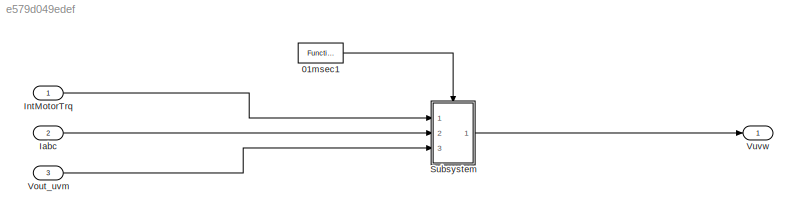
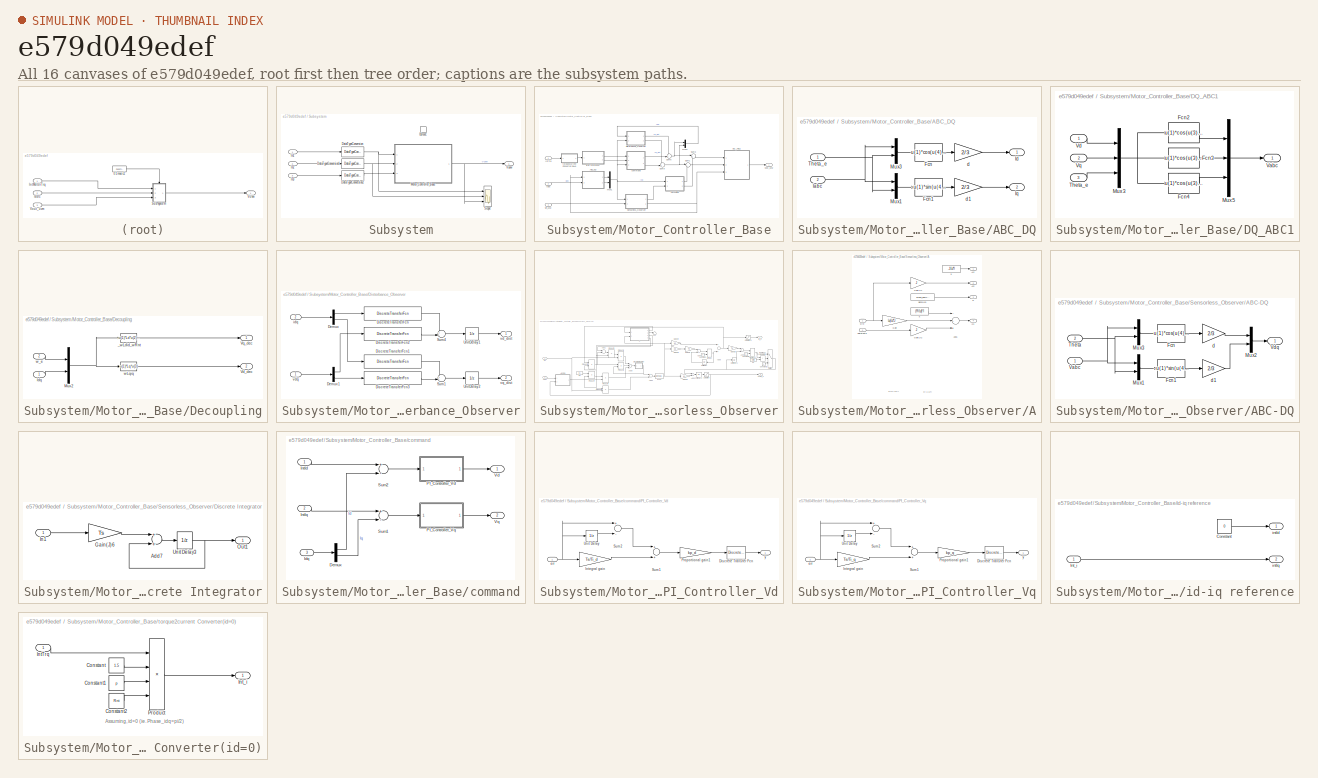
[diagram: thumbnail index - all 16 canvases of the model, root first then tree order]
MODEL slx_e579d049edef
KIND model
CONFIG AbsTol = auto
CONFIG FixedStep = 1e-5
CONFIG MaxStep = auto
CONFIG MinStep = auto
CONFIG PreLoadFcn = param_PMSM_Base\nload('param_PMSM_Base.m');
CONFIG RelTol = 1e-3
CONFIG SampleTimeConstraint = Unconstrained
CONFIG Solver = FixedStepDiscrete
CONFIG SolverMode = SingleTasking
CONFIG SolverName = FixedStepDiscrete
CONFIG StartTime = 0.0
CONFIG StopTime = 1
BLOCK [Reference] 01msec1  REF=simulink/Ports &
Subsystems/Function-Call
Generator
  Ports = [0, 1]
  SourceBlock = simulink/Ports &\nSubsystems/Function-Call\nGenerator
  SourceType = Function-Call Generator
  numberOfIterations = 1
  sample_time = 1e-4
BLOCK [Inport] Iabc
  IconDisplay = Port number
  Port = 2
  PortDimensions = 3
BLOCK [Inport] IntMotorTrq
  IconDisplay = Port number
BLOCK [SubSystem] Subsystem
  Ports = [3, 1, 0, 1]
  RequestExecContextInheritance = off
BLOCK [TriggerPort] Subsystem/01msec
  Ports = []
  StatesWhenEnabling = held
  TriggerType = function-call
BLOCK [DataTypeConversion] Subsystem/DataTypeConversion
  RndMeth = Floor
  SaturateOnIntegerOverflow = off
BLOCK [DataTypeConversion] Subsystem/DataTypeConversion1
  RndMeth = Floor
  SaturateOnIntegerOverflow = off
BLOCK [DataTypeConversion] Subsystem/DataTypeConversion2
  RndMeth = Floor
  SaturateOnIntegerOverflow = off
BLOCK [Inport] Subsystem/In1
  IconDisplay = Port number
BLOCK [Inport] Subsystem/In2
  IconDisplay = Port number
  Port = 2
BLOCK [Inport] Subsystem/In3
  IconDisplay = Port number
  Port = 3
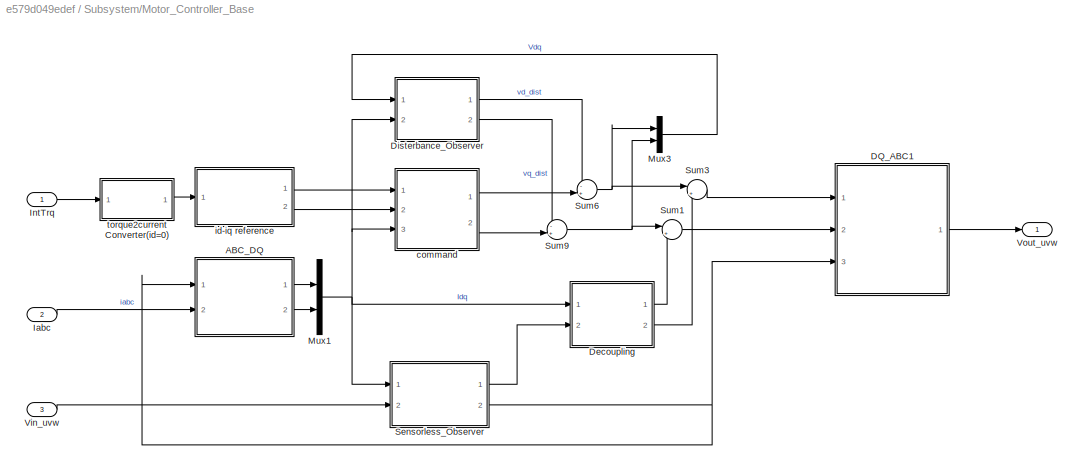
BLOCK [SubSystem] Subsystem/Motor_Controller_Base
  Ports = [3, 1]
  RequestExecContextInheritance = off
  TreatAsAtomicUnit = on
BLOCK [SubSystem] Subsystem/Motor_Controller_Base/ABC_DQ
  Ports = [2, 2]
  RequestExecContextInheritance = off
BLOCK [Fcn] Subsystem/Motor_Controller_Base/ABC_DQ/Fcn
  Expr = u(1)*cos(u(4))+u(2)*cos(u(4)-2*pi/3)+u(3)*cos(u(4)+2*pi/3)
BLOCK [Fcn] Subsystem/Motor_Controller_Base/ABC_DQ/Fcn1
  Expr = -u(1)*sin(u(4))-u(2)*sin(u(4)-2*pi/3)-u(3)*sin(u(4)+2*pi/3)
BLOCK [Inport] Subsystem/Motor_Controller_Base/ABC_DQ/Iabc
  IconDisplay = Port number
  Port = 2
BLOCK [Outport] Subsystem/Motor_Controller_Base/ABC_DQ/Id
  IconDisplay = Port number
  InitialOutput = 0
BLOCK [Outport] Subsystem/Motor_Controller_Base/ABC_DQ/Iq
  IconDisplay = Port number
  InitialOutput = 0
  Port = 2
BLOCK [Mux] Subsystem/Motor_Controller_Base/ABC_DQ/Mux1
  DisplayOption = bar
  Inputs = 2
  Ports = [2, 1]
BLOCK [Mux] Subsystem/Motor_Controller_Base/ABC_DQ/Mux3
  DisplayOption = bar
  Inputs = 2
  Ports = [2, 1]
BLOCK [Inport] Subsystem/Motor_Controller_Base/ABC_DQ/Theta_e
  IconDisplay = Port number
BLOCK [Gain] Subsystem/Motor_Controller_Base/ABC_DQ/d
  Gain = 2/3
  SaturateOnIntegerOverflow = off
BLOCK [Gain] Subsystem/Motor_Controller_Base/ABC_DQ/d1
  Gain = 2/3
  SaturateOnIntegerOverflow = off
BLOCK [SubSystem] Subsystem/Motor_Controller_Base/DQ_ABC1
  Ports = [3, 1]
  RequestExecContextInheritance = off
BLOCK [Fcn] Subsystem/Motor_Controller_Base/DQ_ABC1/Fcn2
  Expr = u(1)*cos(u(3))-u(2)*sin(u(3))
BLOCK [Fcn] Subsystem/Motor_Controller_Base/DQ_ABC1/Fcn3
  Expr = u(1)*cos(u(3)-2*pi/3)-u(2)*sin(u(3)-2*pi/3)
BLOCK [Fcn] Subsystem/Motor_Controller_Base/DQ_ABC1/Fcn4
  Expr = u(1)*cos(u(3)+2*pi/3)-u(2)*sin(u(3)+2*pi/3)
BLOCK [Mux] Subsystem/Motor_Controller_Base/DQ_ABC1/Mux3
  DisplayOption = bar
  Inputs = 3
  Ports = [3, 1]
BLOCK [Mux] Subsystem/Motor_Controller_Base/DQ_ABC1/Mux5
  DisplayOption = bar
  Inputs = 3
  Ports = [3, 1]
BLOCK [Inport] Subsystem/Motor_Controller_Base/DQ_ABC1/Theta_e
  IconDisplay = Port number
  Port = 3
BLOCK [Outport] Subsystem/Motor_Controller_Base/DQ_ABC1/Vabc
  IconDisplay = Port number
  InitialOutput = 0
BLOCK [Inport] Subsystem/Motor_Controller_Base/DQ_ABC1/Vd
  IconDisplay = Port number
BLOCK [Inport] Subsystem/Motor_Controller_Base/DQ_ABC1/Vq
  IconDisplay = Port number
  Port = 2
BLOCK [SubSystem] Subsystem/Motor_Controller_Base/Decoupling
  Ports = [2, 2]
  RequestExecContextInheritance = off
BLOCK [Inport] Subsystem/Motor_Controller_Base/Decoupling/Idq
  IconDisplay = Port number
BLOCK [Mux] Subsystem/Motor_Controller_Base/Decoupling/Mux2
  DisplayOption = bar
  Inputs = 2
  Ports = [2, 1]
BLOCK [Outport] Subsystem/Motor_Controller_Base/Decoupling/Vd_dec
  IconDisplay = Port number
  Port = 2
BLOCK [Outport] Subsystem/Motor_Controller_Base/Decoupling/Vq_dec
  IconDisplay = Port number
BLOCK [Fcn] Subsystem/Motor_Controller_Base/Decoupling/_wLdid_wRnt
  Expr = -u(1)*Ld*u(2)-u(1)*Rnt
BLOCK [Fcn] Subsystem/Motor_Controller_Base/Decoupling/wLqiq
  Expr = u(1)*Lq*u(3)
BLOCK [Inport] Subsystem/Motor_Controller_Base/Decoupling/w_e
  IconDisplay = Port number
  Port = 2
BLOCK [SubSystem] Subsystem/Motor_Controller_Base/Disterbance_Observer
  Ports = [2, 2]
  RequestExecContextInheritance = off
BLOCK [Demux] Subsystem/Motor_Controller_Base/Disterbance_Observer/Demux
  DisplayOption = bar
  Outputs = 2
  Ports = [1, 2]
BLOCK [Demux] Subsystem/Motor_Controller_Base/Disterbance_Observer/Demux1
  DisplayOption = bar
  Outputs = 2
  Ports = [1, 2]
BLOCK [DiscreteTransferFcn] Subsystem/Motor_Controller_Base/Disterbance_Observer/DiscreteTransferFcn
  Denominator = [ 2*Tff+Ts -2*Tff+Ts ]
  InputPortMap = u0
  Numerator = [ 2*Ld+Ts*R  -2*Ld+Ts*R ]
  Ports = [1, 1]
BLOCK [DiscreteTransferFcn] Subsystem/Motor_Controller_Base/Disterbance_Observer/DiscreteTransferFcn1
  Denominator = [ 2*Tff+Ts -2*Tff+Ts ]
  InputPortMap = u0
  Numerator = [ 2*Lq+Ts*R  -2*Lq+Ts*R ]
  Ports = [1, 1]
BLOCK [DiscreteTransferFcn] Subsystem/Motor_Controller_Base/Disterbance_Observer/DiscreteTransferFcn2
  Denominator = [2*Tff+Ts -2*Tff+Ts]
  InputPortMap = u0
  Numerator = [Ts Ts]
  Ports = [1, 1]
BLOCK [DiscreteTransferFcn] Subsystem/Motor_Controller_Base/Disterbance_Observer/DiscreteTransferFcn3
  Denominator = [2*Tff+Ts -2*Tff+Ts]
  InputPortMap = u0
  Numerator = [Ts Ts]
  Ports = [1, 1]
BLOCK [Sum] Subsystem/Motor_Controller_Base/Disterbance_Observer/Sum1
  IconShape = round
  InputSameDT = off
  Inputs = +-|
  OutDataTypeStr = Inherit: Inherit via internal rule
  Ports = [2, 1]
  SaturateOnIntegerOverflow = off
BLOCK [Sum] Subsystem/Motor_Controller_Base/Disterbance_Observer/Sum4
  IconShape = round
  InputSameDT = off
  Inputs = +-|
  OutDataTypeStr = Inherit: Inherit via internal rule
  Ports = [2, 1]
  SaturateOnIntegerOverflow = off
BLOCK [UnitDelay] Subsystem/Motor_Controller_Base/Disterbance_Observer/UnitDelay1
  SampleTime = -1
BLOCK [UnitDelay] Subsystem/Motor_Controller_Base/Disterbance_Observer/UnitDelay2
  SampleTime = -1
BLOCK [Inport] Subsystem/Motor_Controller_Base/Disterbance_Observer/idq
  IconDisplay = Port number
  Port = 2
BLOCK [Outport] Subsystem/Motor_Controller_Base/Disterbance_Observer/vd_dist
  IconDisplay = Port number
BLOCK [Inport] Subsystem/Motor_Controller_Base/Disterbance_Observer/vdq
  IconDisplay = Port number
BLOCK [Outport] Subsystem/Motor_Controller_Base/Disterbance_Observer/vq_dist
  IconDisplay = Port number
  Port = 2
BLOCK [Inport] Subsystem/Motor_Controller_Base/Iabc
  IconDisplay = Port number
  Port = 2
BLOCK [Inport] Subsystem/Motor_Controller_Base/IntTrq
  IconDisplay = Port number
BLOCK [Mux] Subsystem/Motor_Controller_Base/Mux1
  DisplayOption = bar
  Inputs = 2
  Ports = [2, 1]
BLOCK [Mux] Subsystem/Motor_Controller_Base/Mux3
  DisplayOption = bar
  Inputs = 2
  Ports = [2, 1]
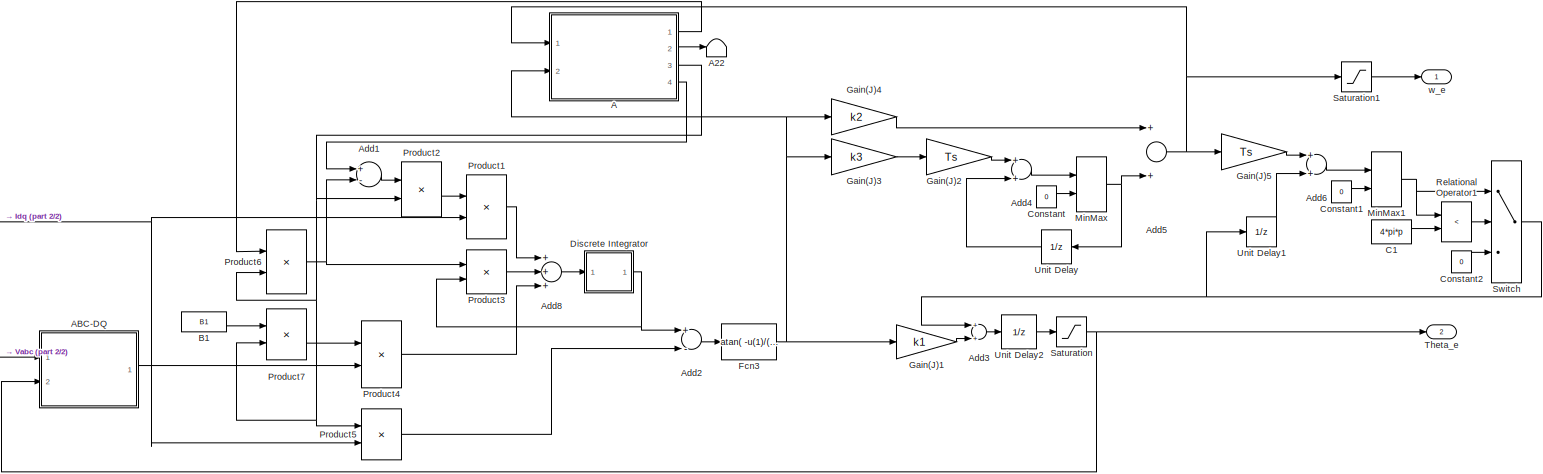
[diagram: Subsystem/Motor_Controller_Base/Sensorless_Observer - part 1/2, most of the canvas]
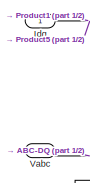
[diagram: Subsystem/Motor_Controller_Base/Sensorless_Observer - part 2/2, middle left region]
BLOCK [SubSystem] Subsystem/Motor_Controller_Base/Sensorless_Observer
  Ports = [2, 2]
  RequestExecContextInheritance = off
BLOCK [SubSystem] Subsystem/Motor_Controller_Base/Sensorless_Observer/A
  Ports = [2, 4]
  RequestExecContextInheritance = off
BLOCK [Outport] Subsystem/Motor_Controller_Base/Sensorless_Observer/A/A11
  IconDisplay = Port number
  Port = 4
BLOCK [Outport] Subsystem/Motor_Controller_Base/Sensorless_Observer/A/A12
  IconDisplay = Port number
BLOCK [Outport] Subsystem/Motor_Controller_Base/Sensorless_Observer/A/A22
  IconDisplay = Port number
  Port = 2
BLOCK [Sum] Subsystem/Motor_Controller_Base/Sensorless_Observer/A/Add1
  InputSameDT = off
  Inputs = --+
  OutDataTypeStr = Inherit: Inherit via internal rule
  Ports = [3, 1]
  SaturateOnIntegerOverflow = off
BLOCK [Outport] Subsystem/Motor_Controller_Base/Sensorless_Observer/A/G
  IconDisplay = Port number
  Port = 3
BLOCK [Gain] Subsystem/Motor_Controller_Base/Sensorless_Observer/A/Gain
  Gain = Lq/Ld*J
  OutDataTypeStr = Inherit: Inherit via internal rule
  ParamDataTypeStr = Inherit: Inherit via internal rule
  SaturateOnIntegerOverflow = off
BLOCK [Gain] Subsystem/Motor_Controller_Base/Sensorless_Observer/A/Gain(J)1
  Gain = J
  SaturateOnIntegerOverflow = off
BLOCK [Gain] Subsystem/Motor_Controller_Base/Sensorless_Observer/A/Gain(J)2
  Gain = J
  SaturateOnIntegerOverflow = off
BLOCK [Constant] Subsystem/Motor_Controller_Base/Sensorless_Observer/A/a
  Value = (R/Ld)*I
BLOCK [Constant] Subsystem/Motor_Controller_Base/Sensorless_Observer/A/alpha*Ld1
  Value = alpha_obs*Ld*I
BLOCK [Constant] Subsystem/Motor_Controller_Base/Sensorless_Observer/A/b
  Value = -1/Ld*I
BLOCK [Inport] Subsystem/Motor_Controller_Base/Sensorless_Observer/A/deltatheta
  IconDisplay = Port number
  Port = 2
BLOCK [Inport] Subsystem/Motor_Controller_Base/Sensorless_Observer/A/wre
  IconDisplay = Port number
BLOCK [Terminator] Subsystem/Motor_Controller_Base/Sensorless_Observer/A22
BLOCK [SubSystem] Subsystem/Motor_Controller_Base/Sensorless_Observer/ABC-DQ
  Ports = [2, 1]
  RequestExecContextInheritance = off
BLOCK [Fcn] Subsystem/Motor_Controller_Base/Sensorless_Observer/ABC-DQ/Fcn
  Expr = u(1)*cos(u(4))+u(2)*cos(u(4)-2*pi/3)+u(3)*cos(u(4)+2*pi/3)
BLOCK [Fcn] Subsystem/Motor_Controller_Base/Sensorless_Observer/ABC-DQ/Fcn1
  Expr = -u(1)*sin(u(4))-u(2)*sin(u(4)-2*pi/3)-u(3)*sin(u(4)+2*pi/3)
BLOCK [Mux] Subsystem/Motor_Controller_Base/Sensorless_Observer/ABC-DQ/Mux1
  DisplayOption = bar
  Inputs = 2
  Ports = [2, 1]
BLOCK [Mux] Subsystem/Motor_Controller_Base/Sensorless_Observer/ABC-DQ/Mux2
  DisplayOption = bar
  Inputs = 2
  Ports = [2, 1]
BLOCK [Mux] Subsystem/Motor_Controller_Base/Sensorless_Observer/ABC-DQ/Mux3
  DisplayOption = bar
  Inputs = 2
  Ports = [2, 1]
BLOCK [Inport] Subsystem/Motor_Controller_Base/Sensorless_Observer/ABC-DQ/Theta
  IconDisplay = Port number
  Port = 2
BLOCK [Inport] Subsystem/Motor_Controller_Base/Sensorless_Observer/ABC-DQ/Vabc
  IconDisplay = Port number
BLOCK [Outport] Subsystem/Motor_Controller_Base/Sensorless_Observer/ABC-DQ/Vdq
  IconDisplay = Port number
  InitialOutput = 0
BLOCK [Gain] Subsystem/Motor_Controller_Base/Sensorless_Observer/ABC-DQ/d
  Gain = 2/3
  SaturateOnIntegerOverflow = off
BLOCK [Gain] Subsystem/Motor_Controller_Base/Sensorless_Observer/ABC-DQ/d1
  Gain = 2/3
  SaturateOnIntegerOverflow = off
BLOCK [Sum] Subsystem/Motor_Controller_Base/Sensorless_Observer/Add1
  InputSameDT = off
  Inputs = +-
  OutDataTypeStr = Inherit: Inherit via internal rule
  Ports = [2, 1]
  SaturateOnIntegerOverflow = off
BLOCK [Sum] Subsystem/Motor_Controller_Base/Sensorless_Observer/Add2
  InputSameDT = off
  Inputs = +-
  OutDataTypeStr = Inherit: Inherit via internal rule
  Ports = [2, 1]
  SaturateOnIntegerOverflow = off
BLOCK [Sum] Subsystem/Motor_Controller_Base/Sensorless_Observer/Add3
  InputSameDT = off
  OutDataTypeStr = Inherit: Inherit via internal rule
  Ports = [2, 1]
  SaturateOnIntegerOverflow = off
BLOCK [Sum] Subsystem/Motor_Controller_Base/Sensorless_Observer/Add4
  InputSameDT = off
  OutDataTypeStr = Inherit: Inherit via internal rule
  Ports = [2, 1]
  SaturateOnIntegerOverflow = off
BLOCK [Sum] Subsystem/Motor_Controller_Base/Sensorless_Observer/Add5
  InputSameDT = off
  OutDataTypeStr = Inherit: Inherit via internal rule
  Ports = [2, 1]
  SaturateOnIntegerOverflow = off
BLOCK [Sum] Subsystem/Motor_Controller_Base/Sensorless_Observer/Add6
  InputSameDT = off
  OutDataTypeStr = Inherit: Inherit via internal rule
  Ports = [2, 1]
  SaturateOnIntegerOverflow = off
BLOCK [Sum] Subsystem/Motor_Controller_Base/Sensorless_Observer/Add8
  InputSameDT = off
  Inputs = +++
  OutDataTypeStr = Inherit: Inherit via internal rule
  Ports = [3, 1]
  SaturateOnIntegerOverflow = off
BLOCK [Constant] Subsystem/Motor_Controller_Base/Sensorless_Observer/B1
  Value = B1
BLOCK [Constant] Subsystem/Motor_Controller_Base/Sensorless_Observer/C1
  Value = 4*pi*p
BLOCK [Constant] Subsystem/Motor_Controller_Base/Sensorless_Observer/Constant
  Value = 0
BLOCK [Constant] Subsystem/Motor_Controller_Base/Sensorless_Observer/Constant1
  Value = 0
BLOCK [Constant] Subsystem/Motor_Controller_Base/Sensorless_Observer/Constant2
  Value = 0
BLOCK [SubSystem] Subsystem/Motor_Controller_Base/Sensorless_Observer/Discrete Integrator
  Ports = [1, 1]
  RequestExecContextInheritance = off
BLOCK [Sum] Subsystem/Motor_Controller_Base/Sensorless_Observer/Discrete Integrator/Add7
  InputSameDT = off
  OutDataTypeStr = Inherit: Inherit via internal rule
  Ports = [2, 1]
  SaturateOnIntegerOverflow = off
BLOCK [Gain] Subsystem/Motor_Controller_Base/Sensorless_Observer/Discrete Integrator/Gain(J)6
  Gain = Ts
  SaturateOnIntegerOverflow = off
BLOCK [Inport] Subsystem/Motor_Controller_Base/Sensorless_Observer/Discrete Integrator/In1
  IconDisplay = Port number
BLOCK [Outport] Subsystem/Motor_Controller_Base/Sensorless_Observer/Discrete Integrator/Out1
  IconDisplay = Port number
BLOCK [UnitDelay] Subsystem/Motor_Controller_Base/Sensorless_Observer/Discrete Integrator/Unit Delay3
  SampleTime = -1
BLOCK [Fcn] Subsystem/Motor_Controller_Base/Sensorless_Observer/Fcn3
  Expr = atan( -u(1)/(u(2)-0.000000000001))
BLOCK [Gain] Subsystem/Motor_Controller_Base/Sensorless_Observer/Gain(J)1
  Gain = k1
  SaturateOnIntegerOverflow = off
BLOCK [Gain] Subsystem/Motor_Controller_Base/Sensorless_Observer/Gain(J)2
  Gain = Ts
  SaturateOnIntegerOverflow = off
BLOCK [Gain] Subsystem/Motor_Controller_Base/Sensorless_Observer/Gain(J)3
  Gain = k3
  SaturateOnIntegerOverflow = off
BLOCK [Gain] Subsystem/Motor_Controller_Base/Sensorless_Observer/Gain(J)4
  Gain = k2
  SaturateOnIntegerOverflow = off
BLOCK [Gain] Subsystem/Motor_Controller_Base/Sensorless_Observer/Gain(J)5
  Gain = Ts
  SaturateOnIntegerOverflow = off
BLOCK [Inport] Subsystem/Motor_Controller_Base/Sensorless_Observer/Idq
  IconDisplay = Port number
BLOCK [MinMax] Subsystem/Motor_Controller_Base/Sensorless_Observer/MinMax
  Function = max
  InputSameDT = off
  Inputs = 2
  Ports = [2, 1]
  SaturateOnIntegerOverflow = off
BLOCK [MinMax] Subsystem/Motor_Controller_Base/Sensorless_Observer/MinMax1
  Function = max
  InputSameDT = off
  Inputs = 2
  Ports = [2, 1]
  SaturateOnIntegerOverflow = off
BLOCK [Product] Subsystem/Motor_Controller_Base/Sensorless_Observer/Product1
  InputSameDT = off
  Multiplication = Matrix(*)
  Ports = [2, 1]
  RndMeth = Floor
  SaturateOnIntegerOverflow = off
BLOCK [Product] Subsystem/Motor_Controller_Base/Sensorless_Observer/Product2
  InputSameDT = off
  Multiplication = Matrix(*)
  Ports = [2, 1]
  RndMeth = Floor
  SaturateOnIntegerOverflow = off
BLOCK [Product] Subsystem/Motor_Controller_Base/Sensorless_Observer/Product3
  InputSameDT = off
  Multiplication = Matrix(*)
  Ports = [2, 1]
  RndMeth = Floor
  SaturateOnIntegerOverflow = off
BLOCK [Product] Subsystem/Motor_Controller_Base/Sensorless_Observer/Product4
  InputSameDT = off
  Multiplication = Matrix(*)
  Ports = [2, 1]
  RndMeth = Floor
  SaturateOnIntegerOverflow = off
BLOCK [Product] Subsystem/Motor_Controller_Base/Sensorless_Observer/Product5
  InputSameDT = off
  Multiplication = Matrix(*)
  Ports = [2, 1]
  RndMeth = Floor
  SaturateOnIntegerOverflow = off
BLOCK [Product] Subsystem/Motor_Controller_Base/Sensorless_Observer/Product6
  InputSameDT = off
  Multiplication = Matrix(*)
  Ports = [2, 1]
  RndMeth = Floor
  SaturateOnIntegerOverflow = off
BLOCK [Product] Subsystem/Motor_Controller_Base/Sensorless_Observer/Product7
  InputSameDT = off
  Multiplication = Matrix(*)
  Ports = [2, 1]
  RndMeth = Floor
  SaturateOnIntegerOverflow = off
BLOCK [RelationalOperator] Subsystem/Motor_Controller_Base/Sensorless_Observer/Relational Operator1
  InputSameDT = off
  Operator = <
  OutDataTypeStr = boolean
  Ports = [2, 1]
BLOCK [Saturate] Subsystem/Motor_Controller_Base/Sensorless_Observer/Saturation
  InputPortMap = u0
  LowerLimit = 0
  Ports = [1, 1]
  UpperLimit = 1000000000
BLOCK [Saturate] Subsystem/Motor_Controller_Base/Sensorless_Observer/Saturation1
  InputPortMap = u0
  LowerLimit = 0
  Ports = [1, 1]
  UpperLimit = inf
BLOCK [Switch] Subsystem/Motor_Controller_Base/Sensorless_Observer/Switch
  InputSameDT = off
  SaturateOnIntegerOverflow = off
  Threshold = 0.5
BLOCK [Outport] Subsystem/Motor_Controller_Base/Sensorless_Observer/Theta_e
  IconDisplay = Port number
  Port = 2
BLOCK [UnitDelay] Subsystem/Motor_Controller_Base/Sensorless_Observer/Unit Delay
  SampleTime = -1
BLOCK [UnitDelay] Subsystem/Motor_Controller_Base/Sensorless_Observer/Unit Delay1
  SampleTime = -1
BLOCK [UnitDelay] Subsystem/Motor_Controller_Base/Sensorless_Observer/Unit Delay2
  SampleTime = -1
BLOCK [Inport] Subsystem/Motor_Controller_Base/Sensorless_Observer/Vabc
  IconDisplay = Port number
  Port = 2
BLOCK [Outport] Subsystem/Motor_Controller_Base/Sensorless_Observer/w_e
  IconDisplay = Port number
BLOCK [Sum] Subsystem/Motor_Controller_Base/Sum1
  IconShape = round
  InputSameDT = off
  Inputs = |+-
  OutDataTypeStr = Inherit: Inherit via internal rule
  Ports = [2, 1]
  SaturateOnIntegerOverflow = off
BLOCK [Sum] Subsystem/Motor_Controller_Base/Sum3
  IconShape = round
  InputSameDT = off
  Inputs = |+-
  OutDataTypeStr = Inherit: Inherit via internal rule
  Ports = [2, 1]
  SaturateOnIntegerOverflow = off
BLOCK [Sum] Subsystem/Motor_Controller_Base/Sum6
  IconShape = round
  InputSameDT = off
  Inputs = -+|
  OutDataTypeStr = Inherit: Inherit via internal rule
  Ports = [2, 1]
  SaturateOnIntegerOverflow = off
BLOCK [Sum] Subsystem/Motor_Controller_Base/Sum9
  IconShape = round
  InputSameDT = off
  Inputs = -+|
  OutDataTypeStr = Inherit: Inherit via internal rule
  Ports = [2, 1]
  SaturateOnIntegerOverflow = off
BLOCK [Inport] Subsystem/Motor_Controller_Base/Vin_uvw
  IconDisplay = Port number
  Port = 3
BLOCK [Outport] Subsystem/Motor_Controller_Base/Vout_uvw
  IconDisplay = Port number
BLOCK [SubSystem] Subsystem/Motor_Controller_Base/command
  Ports = [3, 2]
  RequestExecContextInheritance = off
BLOCK [Demux] Subsystem/Motor_Controller_Base/command/Demux
  DisplayOption = bar
  Outputs = 2
  Ports = [1, 2]
BLOCK [Inport] Subsystem/Motor_Controller_Base/command/Idq
  IconDisplay = Port number
  Port = 3
BLOCK [Inport] Subsystem/Motor_Controller_Base/command/IntId
  IconDisplay = Port number
BLOCK [Inport] Subsystem/Motor_Controller_Base/command/IntIq
  IconDisplay = Port number
  Port = 2
BLOCK [SubSystem] Subsystem/Motor_Controller_Base/command/PI_Controller_Vd
  Ports = [1, 1]
  RequestExecContextInheritance = off
BLOCK [DiscreteTransferFcn] Subsystem/Motor_Controller_Base/command/PI_Controller_Vd/Discrete Transfer Fcn
  Denominator = [1 -1]
  InputPortMap = u0
  Numerator = 1
  Ports = [1, 1]
BLOCK [Gain] Subsystem/Motor_Controller_Base/command/PI_Controller_Vd/Integral gain
  Gain = Ts/Ti_d
  SaturateOnIntegerOverflow = off
BLOCK [Gain] Subsystem/Motor_Controller_Base/command/PI_Controller_Vd/Proportional gain1
  Gain = kp_d
  SaturateOnIntegerOverflow = off
BLOCK [Sum] Subsystem/Motor_Controller_Base/command/PI_Controller_Vd/Sum1
  Ports = [2, 1]
  SaturateOnIntegerOverflow = off
BLOCK [Sum] Subsystem/Motor_Controller_Base/command/PI_Controller_Vd/Sum2
  Inputs = +-
  Ports = [2, 1]
  SaturateOnIntegerOverflow = off
BLOCK [UnitDelay] Subsystem/Motor_Controller_Base/command/PI_Controller_Vd/Unit Delay
  SampleTime = -1
BLOCK [Inport] Subsystem/Motor_Controller_Base/command/PI_Controller_Vd/err
  IconDisplay = Port number
BLOCK [Outport] Subsystem/Motor_Controller_Base/command/PI_Controller_Vd/y
  IconDisplay = Port number
BLOCK [SubSystem] Subsystem/Motor_Controller_Base/command/PI_Controller_Vq
  Ports = [1, 1]
  RequestExecContextInheritance = off
BLOCK [DiscreteTransferFcn] Subsystem/Motor_Controller_Base/command/PI_Controller_Vq/Discrete Transfer Fcn
  Denominator = [1 -1]
  InputPortMap = u0
  Numerator = 1
  Ports = [1, 1]
BLOCK [Gain] Subsystem/Motor_Controller_Base/command/PI_Controller_Vq/Integral gain
  Gain = Ts/Ti_q
  SaturateOnIntegerOverflow = off
BLOCK [Gain] Subsystem/Motor_Controller_Base/command/PI_Controller_Vq/Proportional gain1
  Gain = kp_q
  SaturateOnIntegerOverflow = off
BLOCK [Sum] Subsystem/Motor_Controller_Base/command/PI_Controller_Vq/Sum1
  Ports = [2, 1]
  SaturateOnIntegerOverflow = off
BLOCK [Sum] Subsystem/Motor_Controller_Base/command/PI_Controller_Vq/Sum2
  Inputs = +-
  Ports = [2, 1]
  SaturateOnIntegerOverflow = off
BLOCK [UnitDelay] Subsystem/Motor_Controller_Base/command/PI_Controller_Vq/Unit Delay
  SampleTime = -1
BLOCK [Inport] Subsystem/Motor_Controller_Base/command/PI_Controller_Vq/err
  IconDisplay = Port number
BLOCK [Outport] Subsystem/Motor_Controller_Base/command/PI_Controller_Vq/y
  IconDisplay = Port number
BLOCK [Sum] Subsystem/Motor_Controller_Base/command/Sum1
  Inputs = +-
  Ports = [2, 1]
  SaturateOnIntegerOverflow = off
BLOCK [Sum] Subsystem/Motor_Controller_Base/command/Sum2
  Inputs = +-
  Ports = [2, 1]
  SaturateOnIntegerOverflow = off
BLOCK [Outport] Subsystem/Motor_Controller_Base/command/Vd
  IconDisplay = Port number
BLOCK [Outport] Subsystem/Motor_Controller_Base/command/Vq
  IconDisplay = Port number
  Port = 2
BLOCK [SubSystem] Subsystem/Motor_Controller_Base/id-iq reference
  Ports = [1, 2]
  RequestExecContextInheritance = off
BLOCK [Constant] Subsystem/Motor_Controller_Base/id-iq reference/Constant
  Value = 0
BLOCK [Inport] Subsystem/Motor_Controller_Base/id-iq reference/Int_i
  IconDisplay = Port number
BLOCK [Outport] Subsystem/Motor_Controller_Base/id-iq reference/intId
  IconDisplay = Port number
BLOCK [Outport] Subsystem/Motor_Controller_Base/id-iq reference/intIq
  IconDisplay = Port number
  Port = 2
BLOCK [SubSystem] Subsystem/Motor_Controller_Base/torque2current Converter(id=0)
  Ports = [1, 1]
  RequestExecContextInheritance = off
BLOCK [Constant] Subsystem/Motor_Controller_Base/torque2current Converter(id=0)/Constant
  Value = 1.5
BLOCK [Constant] Subsystem/Motor_Controller_Base/torque2current Converter(id=0)/Constant1
  Value = p
BLOCK [Constant] Subsystem/Motor_Controller_Base/torque2current Converter(id=0)/Constant2
  Value = Rnt
BLOCK [Inport] Subsystem/Motor_Controller_Base/torque2current Converter(id=0)/IntTrq
  IconDisplay = Port number
BLOCK [Outport] Subsystem/Motor_Controller_Base/torque2current Converter(id=0)/Int_i
  IconDisplay = Port number
BLOCK [Product] Subsystem/Motor_Controller_Base/torque2current Converter(id=0)/Product
  InputSameDT = off
  Inputs = *///
  OutDataTypeStr = Inherit: Inherit via internal rule
  Ports = [4, 1]
  SaturateOnIntegerOverflow = off
BLOCK [Scope] Subsystem/Scope
  DataFormat = StructureWithTime
  Floating = off
  LimitDataPoints = off
  NumInputPorts = 3
  Ports = [3]
  SampleTime = 0
  SaveName = MotorCtrlInOutData1
  SaveToWorkspace = on
  ShowLegends = off
  YMax = 5~5~5
  YMin = -5~-5~-5
BLOCK [Outport] Subsystem/Vuvw
  IconDisplay = Port number
BLOCK [Inport] Vout_uvm
  IconDisplay = Port number
  Port = 3
  PortDimensions = 3
BLOCK [Outport] Vuvw
  IconDisplay = Port number
ANNOTATION Subsystem/Motor_Controller_Base/Sensorless_Observer/A: a=(R/Ld)*I
ANNOTATION Subsystem/Motor_Controller_Base/Sensorless_Observer/A: b=-1/Ld*I
ANNOTATION Subsystem/Motor_Controller_Base/torque2current Converter(id=0): Assuming, id=0 (ie. Phase_idq=pi/2)
LINE 01msec1:1 -> Subsystem:trigger
LINE Iabc:1 -> Subsystem:2
LINE IntMotorTrq:1 -> Subsystem:1
NET Subsystem/DataTypeConversion1:1 -> Subsystem/Motor_Controller_Base:2, Subsystem/Scope:2
LINE Subsystem/DataTypeConversion2:1 -> Subsystem/Motor_Controller_Base:3
NET Subsystem/DataTypeConversion:1 -> Subsystem/Motor_Controller_Base:1, Subsystem/Scope:1
LINE Subsystem/In1:1 -> Subsystem/DataTypeConversion:1
LINE Subsystem/In2:1 -> Subsystem/DataTypeConversion1:1
LINE Subsystem/In3:1 -> Subsystem/DataTypeConversion2:1
LINE Subsystem/Motor_Controller_Base/ABC_DQ/Fcn1:1 -> Subsystem/Motor_Controller_Base/ABC_DQ/d1:1
LINE Subsystem/Motor_Controller_Base/ABC_DQ/Fcn:1 -> Subsystem/Motor_Controller_Base/ABC_DQ/d:1
NET Subsystem/Motor_Controller_Base/ABC_DQ/Iabc:1 -> Subsystem/Motor_Controller_Base/ABC_DQ/Mux1:1, Subsystem/Motor_Controller_Base/ABC_DQ/Mux3:1
LINE Subsystem/Motor_Controller_Base/ABC_DQ/Mux1:1 -> Subsystem/Motor_Controller_Base/ABC_DQ/Fcn1:1
LINE Subsystem/Motor_Controller_Base/ABC_DQ/Mux3:1 -> Subsystem/Motor_Controller_Base/ABC_DQ/Fcn:1
NET Subsystem/Motor_Controller_Base/ABC_DQ/Theta_e:1 -> Subsystem/Motor_Controller_Base/ABC_DQ/Mux1:2, Subsystem/Motor_Controller_Base/ABC_DQ/Mux3:2
LINE Subsystem/Motor_Controller_Base/ABC_DQ/d1:1 -> Subsystem/Motor_Controller_Base/ABC_DQ/Iq:1
LINE Subsystem/Motor_Controller_Base/ABC_DQ/d:1 -> Subsystem/Motor_Controller_Base/ABC_DQ/Id:1
LINE Subsystem/Motor_Controller_Base/ABC_DQ:1 -> Subsystem/Motor_Controller_Base/Mux1:1
LINE Subsystem/Motor_Controller_Base/ABC_DQ:2 -> Subsystem/Motor_Controller_Base/Mux1:2
LINE Subsystem/Motor_Controller_Base/DQ_ABC1/Fcn2:1 -> Subsystem/Motor_Controller_Base/DQ_ABC1/Mux5:1
LINE Subsystem/Motor_Controller_Base/DQ_ABC1/Fcn3:1 -> Subsystem/Motor_Controller_Base/DQ_ABC1/Mux5:2
LINE Subsystem/Motor_Controller_Base/DQ_ABC1/Fcn4:1 -> Subsystem/Motor_Controller_Base/DQ_ABC1/Mux5:3
NET Subsystem/Motor_Controller_Base/DQ_ABC1/Mux3:1 -> Subsystem/Motor_Controller_Base/DQ_ABC1/Fcn2:1, Subsystem/Motor_Controller_Base/DQ_ABC1/Fcn3:1, Subsystem/Motor_Controller_Base/DQ_ABC1/Fcn4:1
LINE Subsystem/Motor_Controller_Base/DQ_ABC1/Mux5:1 -> Subsystem/Motor_Controller_Base/DQ_ABC1/Vabc:1
LINE Subsystem/Motor_Controller_Base/DQ_ABC1/Theta_e:1 -> Subsystem/Motor_Controller_Base/DQ_ABC1/Mux3:3
LINE Subsystem/Motor_Controller_Base/DQ_ABC1/Vd:1 -> Subsystem/Motor_Controller_Base/DQ_ABC1/Mux3:1
LINE Subsystem/Motor_Controller_Base/DQ_ABC1/Vq:1 -> Subsystem/Motor_Controller_Base/DQ_ABC1/Mux3:2
LINE Subsystem/Motor_Controller_Base/DQ_ABC1:1 -> Subsystem/Motor_Controller_Base/Vout_uvw:1
LINE Subsystem/Motor_Controller_Base/Decoupling/Idq:1 -> Subsystem/Motor_Controller_Base/Decoupling/Mux2:2
NET Subsystem/Motor_Controller_Base/Decoupling/Mux2:1 -> Subsystem/Motor_Controller_Base/Decoupling/_wLdid_wRnt:1, Subsystem/Motor_Controller_Base/Decoupling/wLqiq:1
LINE Subsystem/Motor_Controller_Base/Decoupling/_wLdid_wRnt:1 -> Subsystem/Motor_Controller_Base/Decoupling/Vq_dec:1
LINE Subsystem/Motor_Controller_Base/Decoupling/wLqiq:1 -> Subsystem/Motor_Controller_Base/Decoupling/Vd_dec:1
LINE Subsystem/Motor_Controller_Base/Decoupling/w_e:1 -> Subsystem/Motor_Controller_Base/Decoupling/Mux2:1
LINE Subsystem/Motor_Controller_Base/Decoupling:1 -> Subsystem/Motor_Controller_Base/Sum1:2
LINE Subsystem/Motor_Controller_Base/Decoupling:2 -> Subsystem/Motor_Controller_Base/Sum3:2
LINE Subsystem/Motor_Controller_Base/Disterbance_Observer/Demux1:1 -> Subsystem/Motor_Controller_Base/Disterbance_Observer/DiscreteTransferFcn2:1
LINE Subsystem/Motor_Controller_Base/Disterbance_Observer/Demux1:2 -> Subsystem/Motor_Controller_Base/Disterbance_Observer/DiscreteTransferFcn3:1
LINE Subsystem/Motor_Controller_Base/Disterbance_Observer/Demux:1 -> Subsystem/Motor_Controller_Base/Disterbance_Observer/DiscreteTransferFcn:1
LINE Subsystem/Motor_Controller_Base/Disterbance_Observer/Demux:2 -> Subsystem/Motor_Controller_Base/Disterbance_Observer/DiscreteTransferFcn1:1
LINE Subsystem/Motor_Controller_Base/Disterbance_Observer/DiscreteTransferFcn1:1 -> Subsystem/Motor_Controller_Base/Disterbance_Observer/Sum1:1
LINE Subsystem/Motor_Controller_Base/Disterbance_Observer/DiscreteTransferFcn2:1 -> Subsystem/Motor_Controller_Base/Disterbance_Observer/Sum4:2
LINE Subsystem/Motor_Controller_Base/Disterbance_Observer/DiscreteTransferFcn3:1 -> Subsystem/Motor_Controller_Base/Disterbance_Observer/Sum1:2
LINE Subsystem/Motor_Controller_Base/Disterbance_Observer/DiscreteTransferFcn:1 -> Subsystem/Motor_Controller_Base/Disterbance_Observer/Sum4:1
LINE Subsystem/Motor_Controller_Base/Disterbance_Observer/Sum1:1 -> Subsystem/Motor_Controller_Base/Disterbance_Observer/UnitDelay2:1
LINE Subsystem/Motor_Controller_Base/Disterbance_Observer/Sum4:1 -> Subsystem/Motor_Controller_Base/Disterbance_Observer/UnitDelay1:1
LINE Subsystem/Motor_Controller_Base/Disterbance_Observer/UnitDelay1:1 -> Subsystem/Motor_Controller_Base/Disterbance_Observer/vd_dist:1
LINE Subsystem/Motor_Controller_Base/Disterbance_Observer/UnitDelay2:1 -> Subsystem/Motor_Controller_Base/Disterbance_Observer/vq_dist:1
LINE Subsystem/Motor_Controller_Base/Disterbance_Observer/idq:1 -> Subsystem/Motor_Controller_Base/Disterbance_Observer/Demux:1
LINE Subsystem/Motor_Controller_Base/Disterbance_Observer/vdq:1 -> Subsystem/Motor_Controller_Base/Disterbance_Observer/Demux1:1
LINE Subsystem/Motor_Controller_Base/Disterbance_Observer:1 -> Subsystem/Motor_Controller_Base/Sum6:1
LINE Subsystem/Motor_Controller_Base/Disterbance_Observer:2 -> Subsystem/Motor_Controller_Base/Sum9:1
LINE Subsystem/Motor_Controller_Base/Iabc:1 -> Subsystem/Motor_Controller_Base/ABC_DQ:2
LINE Subsystem/Motor_Controller_Base/IntTrq:1 -> Subsystem/Motor_Controller_Base/torque2current Converter(id=0):1
NET Subsystem/Motor_Controller_Base/Mux1:1 -> Subsystem/Motor_Controller_Base/Decoupling:1, Subsystem/Motor_Controller_Base/Disterbance_Observer:2, Subsystem/Motor_Controller_Base/Sensorless_Observer:1, Subsystem/Motor_Controller_Base/command:3
LINE Subsystem/Motor_Controller_Base/Mux3:1 -> Subsystem/Motor_Controller_Base/Disterbance_Observer:1
LINE Subsystem/Motor_Controller_Base/Sensorless_Observer/A/Add1:1 -> Subsystem/Motor_Controller_Base/Sensorless_Observer/A/A11:1
LINE Subsystem/Motor_Controller_Base/Sensorless_Observer/A/Gain(J)1:1 -> Subsystem/Motor_Controller_Base/Sensorless_Observer/A/A22:1
LINE Subsystem/Motor_Controller_Base/Sensorless_Observer/A/Gain(J)2:1 -> Subsystem/Motor_Controller_Base/Sensorless_Observer/A/Add1:3
LINE Subsystem/Motor_Controller_Base/Sensorless_Observer/A/Gain:1 -> Subsystem/Motor_Controller_Base/Sensorless_Observer/A/Add1:2
LINE Subsystem/Motor_Controller_Base/Sensorless_Observer/A/a:1 -> Subsystem/Motor_Controller_Base/Sensorless_Observer/A/Add1:1
LINE Subsystem/Motor_Controller_Base/Sensorless_Observer/A/alpha*Ld1:1 -> Subsystem/Motor_Controller_Base/Sensorless_Observer/A/G:1
LINE Subsystem/Motor_Controller_Base/Sensorless_Observer/A/b:1 -> Subsystem/Motor_Controller_Base/Sensorless_Observer/A/A12:1
LINE Subsystem/Motor_Controller_Base/Sensorless_Observer/A/deltatheta:1 -> Subsystem/Motor_Controller_Base/Sensorless_Observer/A/Gain(J)2:1
NET Subsystem/Motor_Controller_Base/Sensorless_Observer/A/wre:1 -> Subsystem/Motor_Controller_Base/Sensorless_Observer/A/Gain(J)1:1, Subsystem/Motor_Controller_Base/Sensorless_Observer/A/Gain:1
LINE Subsystem/Motor_Controller_Base/Sensorless_Observer/A:1 -> Subsystem/Motor_Controller_Base/Sensorless_Observer/Product6:1
LINE Subsystem/Motor_Controller_Base/Sensorless_Observer/A:2 -> Subsystem/Motor_Controller_Base/Sensorless_Observer/A22:1
NET Subsystem/Motor_Controller_Base/Sensorless_Observer/A:3 -> Subsystem/Motor_Controller_Base/Sensorless_Observer/Product2:2, Subsystem/Motor_Controller_Base/Sensorless_Observer/Product5:1, Subsystem/Motor_Controller_Base/Sensorless_Observer/Product6:2, Subsystem/Motor_Controller_Base/Sensorless_Observer/Product7:2
LINE Subsystem/Motor_Controller_Base/Sensorless_Observer/A:4 -> Subsystem/Motor_Controller_Base/Sensorless_Observer/Add1:1
LINE Subsystem/Motor_Controller_Base/Sensorless_Observer/ABC-DQ/Fcn1:1 -> Subsystem/Motor_Controller_Base/Sensorless_Observer/ABC-DQ/d1:1
LINE Subsystem/Motor_Controller_Base/Sensorless_Observer/ABC-DQ/Fcn:1 -> Subsystem/Motor_Controller_Base/Sensorless_Observer/ABC-DQ/d:1
LINE Subsystem/Motor_Controller_Base/Sensorless_Observer/ABC-DQ/Mux1:1 -> Subsystem/Motor_Controller_Base/Sensorless_Observer/ABC-DQ/Fcn1:1
LINE Subsystem/Motor_Controller_Base/Sensorless_Observer/ABC-DQ/Mux2:1 -> Subsystem/Motor_Controller_Base/Sensorless_Observer/ABC-DQ/Vdq:1
LINE Subsystem/Motor_Controller_Base/Sensorless_Observer/ABC-DQ/Mux3:1 -> Subsystem/Motor_Controller_Base/Sensorless_Observer/ABC-DQ/Fcn:1
NET Subsystem/Motor_Controller_Base/Sensorless_Observer/ABC-DQ/Theta:1 -> Subsystem/Motor_Controller_Base/Sensorless_Observer/ABC-DQ/Mux1:2, Subsystem/Motor_Controller_Base/Sensorless_Observer/ABC-DQ/Mux3:2
NET Subsystem/Motor_Controller_Base/Sensorless_Observer/ABC-DQ/Vabc:1 -> Subsystem/Motor_Controller_Base/Sensorless_Observer/ABC-DQ/Mux1:1, Subsystem/Motor_Controller_Base/Sensorless_Observer/ABC-DQ/Mux3:1
LINE Subsystem/Motor_Controller_Base/Sensorless_Observer/ABC-DQ/d1:1 -> Subsystem/Motor_Controller_Base/Sensorless_Observer/ABC-DQ/Mux2:2
LINE Subsystem/Motor_Controller_Base/Sensorless_Observer/ABC-DQ/d:1 -> Subsystem/Motor_Controller_Base/Sensorless_Observer/ABC-DQ/Mux2:1
LINE Subsystem/Motor_Controller_Base/Sensorless_Observer/ABC-DQ:1 -> Subsystem/Motor_Controller_Base/Sensorless_Observer/Product4:2
LINE Subsystem/Motor_Controller_Base/Sensorless_Observer/Add1:1 -> Subsystem/Motor_Controller_Base/Sensorless_Observer/Product2:1
LINE Subsystem/Motor_Controller_Base/Sensorless_Observer/Add2:1 -> Subsystem/Motor_Controller_Base/Sensorless_Observer/Fcn3:1
LINE Subsystem/Motor_Controller_Base/Sensorless_Observer/Add3:1 -> Subsystem/Motor_Controller_Base/Sensorless_Observer/Unit Delay2:1
LINE Subsystem/Motor_Controller_Base/Sensorless_Observer/Add4:1 -> Subsystem/Motor_Controller_Base/Sensorless_Observer/MinMax:1
NET Subsystem/Motor_Controller_Base/Sensorless_Observer/Add5:1 -> Subsystem/Motor_Controller_Base/Sensorless_Observer/A:1, Subsystem/Motor_Controller_Base/Sensorless_Observer/Gain(J)5:1, Subsystem/Motor_Controller_Base/Sensorless_Observer/Saturation1:1
LINE Subsystem/Motor_Controller_Base/Sensorless_Observer/Add6:1 -> Subsystem/Motor_Controller_Base/Sensorless_Observer/MinMax1:1
LINE Subsystem/Motor_Controller_Base/Sensorless_Observer/Add8:1 -> Subsystem/Motor_Controller_Base/Sensorless_Observer/Discrete Integrator:1
LINE Subsystem/Motor_Controller_Base/Sensorless_Observer/B1:1 -> Subsystem/Motor_Controller_Base/Sensorless_Observer/Product7:1
LINE Subsystem/Motor_Controller_Base/Sensorless_Observer/C1:1 -> Subsystem/Motor_Controller_Base/Sensorless_Observer/Relational Operator1:2
LINE Subsystem/Motor_Controller_Base/Sensorless_Observer/Constant1:1 -> Subsystem/Motor_Controller_Base/Sensorless_Observer/MinMax1:2
LINE Subsystem/Motor_Controller_Base/Sensorless_Observer/Constant2:1 -> Subsystem/Motor_Controller_Base/Sensorless_Observer/Switch:3
LINE Subsystem/Motor_Controller_Base/Sensorless_Observer/Constant:1 -> Subsystem/Motor_Controller_Base/Sensorless_Observer/MinMax:2
LINE Subsystem/Motor_Controller_Base/Sensorless_Observer/Discrete Integrator/Add7:1 -> Subsystem/Motor_Controller_Base/Sensorless_Observer/Discrete Integrator/Unit Delay3:1
LINE Subsystem/Motor_Controller_Base/Sensorless_Observer/Discrete Integrator/Gain(J)6:1 -> Subsystem/Motor_Controller_Base/Sensorless_Observer/Discrete Integrator/Add7:1
LINE Subsystem/Motor_Controller_Base/Sensorless_Observer/Discrete Integrator/In1:1 -> Subsystem/Motor_Controller_Base/Sensorless_Observer/Discrete Integrator/Gain(J)6:1
NET Subsystem/Motor_Controller_Base/Sensorless_Observer/Discrete Integrator/Unit Delay3:1 -> Subsystem/Motor_Controller_Base/Sensorless_Observer/Discrete Integrator/Add7:2, Subsystem/Motor_Controller_Base/Sensorless_Observer/Discrete Integrator/Out1:1
NET Subsystem/Motor_Controller_Base/Sensorless_Observer/Discrete Integrator:1 -> Subsystem/Motor_Controller_Base/Sensorless_Observer/Add2:1, Subsystem/Motor_Controller_Base/Sensorless_Observer/Product3:2
NET Subsystem/Motor_Controller_Base/Sensorless_Observer/Fcn3:1 -> Subsystem/Motor_Controller_Base/Sensorless_Observer/A:2, Subsystem/Motor_Controller_Base/Sensorless_Observer/Gain(J)1:1, Subsystem/Motor_Controller_Base/Sensorless_Observer/Gain(J)3:1, Subsystem/Motor_Controller_Base/Sensorless_Observer/Gain(J)4:1
LINE Subsystem/Motor_Controller_Base/Sensorless_Observer/Gain(J)1:1 -> Subsystem/Motor_Controller_Base/Sensorless_Observer/Add3:2
LINE Subsystem/Motor_Controller_Base/Sensorless_Observer/Gain(J)2:1 -> Subsystem/Motor_Controller_Base/Sensorless_Observer/Add4:1
LINE Subsystem/Motor_Controller_Base/Sensorless_Observer/Gain(J)3:1 -> Subsystem/Motor_Controller_Base/Sensorless_Observer/Gain(J)2:1
LINE Subsystem/Motor_Controller_Base/Sensorless_Observer/Gain(J)4:1 -> Subsystem/Motor_Controller_Base/Sensorless_Observer/Add5:1
LINE Subsystem/Motor_Controller_Base/Sensorless_Observer/Gain(J)5:1 -> Subsystem/Motor_Controller_Base/Sensorless_Observer/Add6:1
NET Subsystem/Motor_Controller_Base/Sensorless_Observer/Idq:1 -> Subsystem/Motor_Controller_Base/Sensorless_Observer/Product1:2, Subsystem/Motor_Controller_Base/Sensorless_Observer/Product5:2
NET Subsystem/Motor_Controller_Base/Sensorless_Observer/MinMax1:1 -> Subsystem/Motor_Controller_Base/Sensorless_Observer/Relational Operator1:1, Subsystem/Motor_Controller_Base/Sensorless_Observer/Switch:1
NET Subsystem/Motor_Controller_Base/Sensorless_Observer/MinMax:1 -> Subsystem/Motor_Controller_Base/Sensorless_Observer/Add5:2, Subsystem/Motor_Controller_Base/Sensorless_Observer/Unit Delay:1
LINE Subsystem/Motor_Controller_Base/Sensorless_Observer/Product1:1 -> Subsystem/Motor_Controller_Base/Sensorless_Observer/Add8:1
LINE Subsystem/Motor_Controller_Base/Sensorless_Observer/Product2:1 -> Subsystem/Motor_Controller_Base/Sensorless_Observer/Product1:1
LINE Subsystem/Motor_Controller_Base/Sensorless_Observer/Product3:1 -> Subsystem/Motor_Controller_Base/Sensorless_Observer/Add8:2
LINE Subsystem/Motor_Controller_Base/Sensorless_Observer/Product4:1 -> Subsystem/Motor_Controller_Base/Sensorless_Observer/Add8:3
LINE Subsystem/Motor_Controller_Base/Sensorless_Observer/Product5:1 -> Subsystem/Motor_Controller_Base/Sensorless_Observer/Add2:2
NET Subsystem/Motor_Controller_Base/Sensorless_Observer/Product6:1 -> Subsystem/Motor_Controller_Base/Sensorless_Observer/Add1:2, Subsystem/Motor_Controller_Base/Sensorless_Observer/Product3:1
LINE Subsystem/Motor_Controller_Base/Sensorless_Observer/Product7:1 -> Subsystem/Motor_Controller_Base/Sensorless_Observer/Product4:1
LINE Subsystem/Motor_Controller_Base/Sensorless_Observer/Relational Operator1:1 -> Subsystem/Motor_Controller_Base/Sensorless_Observer/Switch:2
LINE Subsystem/Motor_Controller_Base/Sensorless_Observer/Saturation1:1 -> Subsystem/Motor_Controller_Base/Sensorless_Observer/w_e:1
NET Subsystem/Motor_Controller_Base/Sensorless_Observer/Saturation:1 -> Subsystem/Motor_Controller_Base/Sensorless_Observer/ABC-DQ:2, Subsystem/Motor_Controller_Base/Sensorless_Observer/Theta_e:1
NET Subsystem/Motor_Controller_Base/Sensorless_Observer/Switch:1 -> Subsystem/Motor_Controller_Base/Sensorless_Observer/Add3:1, Subsystem/Motor_Controller_Base/Sensorless_Observer/Unit Delay1:1
LINE Subsystem/Motor_Controller_Base/Sensorless_Observer/Unit Delay1:1 -> Subsystem/Motor_Controller_Base/Sensorless_Observer/Add6:2
LINE Subsystem/Motor_Controller_Base/Sensorless_Observer/Unit Delay2:1 -> Subsystem/Motor_Controller_Base/Sensorless_Observer/Saturation:1
LINE Subsystem/Motor_Controller_Base/Sensorless_Observer/Unit Delay:1 -> Subsystem/Motor_Controller_Base/Sensorless_Observer/Add4:2
LINE Subsystem/Motor_Controller_Base/Sensorless_Observer/Vabc:1 -> Subsystem/Motor_Controller_Base/Sensorless_Observer/ABC-DQ:1
LINE Subsystem/Motor_Controller_Base/Sensorless_Observer:1 -> Subsystem/Motor_Controller_Base/Decoupling:2
NET Subsystem/Motor_Controller_Base/Sensorless_Observer:2 -> Subsystem/Motor_Controller_Base/ABC_DQ:1, Subsystem/Motor_Controller_Base/DQ_ABC1:3
LINE Subsystem/Motor_Controller_Base/Sum1:1 -> Subsystem/Motor_Controller_Base/DQ_ABC1:2
LINE Subsystem/Motor_Controller_Base/Sum3:1 -> Subsystem/Motor_Controller_Base/DQ_ABC1:1
NET Subsystem/Motor_Controller_Base/Sum6:1 -> Subsystem/Motor_Controller_Base/Mux3:1, Subsystem/Motor_Controller_Base/Sum3:1
NET Subsystem/Motor_Controller_Base/Sum9:1 -> Subsystem/Motor_Controller_Base/Mux3:2, Subsystem/Motor_Controller_Base/Sum1:1
LINE Subsystem/Motor_Controller_Base/Vin_uvw:1 -> Subsystem/Motor_Controller_Base/Sensorless_Observer:2
LINE Subsystem/Motor_Controller_Base/command/Demux:1 -> Subsystem/Motor_Controller_Base/command/Sum2:2
LINE Subsystem/Motor_Controller_Base/command/Demux:2 -> Subsystem/Motor_Controller_Base/command/Sum1:2
LINE Subsystem/Motor_Controller_Base/command/Idq:1 -> Subsystem/Motor_Controller_Base/command/Demux:1
LINE Subsystem/Motor_Controller_Base/command/IntId:1 -> Subsystem/Motor_Controller_Base/command/Sum2:1
LINE Subsystem/Motor_Controller_Base/command/IntIq:1 -> Subsystem/Motor_Controller_Base/command/Sum1:1
LINE Subsystem/Motor_Controller_Base/command/PI_Controller_Vd/Discrete Transfer Fcn:1 -> Subsystem/Motor_Controller_Base/command/PI_Controller_Vd/y:1
LINE Subsystem/Motor_Controller_Base/command/PI_Controller_Vd/Integral gain:1 -> Subsystem/Motor_Controller_Base/command/PI_Controller_Vd/Sum1:2
LINE Subsystem/Motor_Controller_Base/command/PI_Controller_Vd/Proportional gain1:1 -> Subsystem/Motor_Controller_Base/command/PI_Controller_Vd/Discrete Transfer Fcn:1
LINE Subsystem/Motor_Controller_Base/command/PI_Controller_Vd/Sum1:1 -> Subsystem/Motor_Controller_Base/command/PI_Controller_Vd/Proportional gain1:1
LINE Subsystem/Motor_Controller_Base/command/PI_Controller_Vd/Sum2:1 -> Subsystem/Motor_Controller_Base/command/PI_Controller_Vd/Sum1:1
LINE Subsystem/Motor_Controller_Base/command/PI_Controller_Vd/Unit Delay:1 -> Subsystem/Motor_Controller_Base/command/PI_Controller_Vd/Sum2:2
NET Subsystem/Motor_Controller_Base/command/PI_Controller_Vd/err:1 -> Subsystem/Motor_Controller_Base/command/PI_Controller_Vd/Integral gain:1, Subsystem/Motor_Controller_Base/command/PI_Controller_Vd/Sum2:1, Subsystem/Motor_Controller_Base/command/PI_Controller_Vd/Unit Delay:1
LINE Subsystem/Motor_Controller_Base/command/PI_Controller_Vd:1 -> Subsystem/Motor_Controller_Base/command/Vd:1
LINE Subsystem/Motor_Controller_Base/command/PI_Controller_Vq/Discrete Transfer Fcn:1 -> Subsystem/Motor_Controller_Base/command/PI_Controller_Vq/y:1
LINE Subsystem/Motor_Controller_Base/command/PI_Controller_Vq/Integral gain:1 -> Subsystem/Motor_Controller_Base/command/PI_Controller_Vq/Sum1:2
LINE Subsystem/Motor_Controller_Base/command/PI_Controller_Vq/Proportional gain1:1 -> Subsystem/Motor_Controller_Base/command/PI_Controller_Vq/Discrete Transfer Fcn:1
LINE Subsystem/Motor_Controller_Base/command/PI_Controller_Vq/Sum1:1 -> Subsystem/Motor_Controller_Base/command/PI_Controller_Vq/Proportional gain1:1
LINE Subsystem/Motor_Controller_Base/command/PI_Controller_Vq/Sum2:1 -> Subsystem/Motor_Controller_Base/command/PI_Controller_Vq/Sum1:1
LINE Subsystem/Motor_Controller_Base/command/PI_Controller_Vq/Unit Delay:1 -> Subsystem/Motor_Controller_Base/command/PI_Controller_Vq/Sum2:2
NET Subsystem/Motor_Controller_Base/command/PI_Controller_Vq/err:1 -> Subsystem/Motor_Controller_Base/command/PI_Controller_Vq/Integral gain:1, Subsystem/Motor_Controller_Base/command/PI_Controller_Vq/Sum2:1, Subsystem/Motor_Controller_Base/command/PI_Controller_Vq/Unit Delay:1
LINE Subsystem/Motor_Controller_Base/command/PI_Controller_Vq:1 -> Subsystem/Motor_Controller_Base/command/Vq:1
LINE Subsystem/Motor_Controller_Base/command/Sum1:1 -> Subsystem/Motor_Controller_Base/command/PI_Controller_Vq:1
LINE Subsystem/Motor_Controller_Base/command/Sum2:1 -> Subsystem/Motor_Controller_Base/command/PI_Controller_Vd:1
LINE Subsystem/Motor_Controller_Base/command:1 -> Subsystem/Motor_Controller_Base/Sum6:2
LINE Subsystem/Motor_Controller_Base/command:2 -> Subsystem/Motor_Controller_Base/Sum9:2
LINE Subsystem/Motor_Controller_Base/id-iq reference/Constant:1 -> Subsystem/Motor_Controller_Base/id-iq reference/intId:1
LINE Subsystem/Motor_Controller_Base/id-iq reference/Int_i:1 -> Subsystem/Motor_Controller_Base/id-iq reference/intIq:1
LINE Subsystem/Motor_Controller_Base/id-iq reference:1 -> Subsystem/Motor_Controller_Base/command:1
LINE Subsystem/Motor_Controller_Base/id-iq reference:2 -> Subsystem/Motor_Controller_Base/command:2
LINE Subsystem/Motor_Controller_Base/torque2current Converter(id=0)/Constant1:1 -> Subsystem/Motor_Controller_Base/torque2current Converter(id=0)/Product:3
LINE Subsystem/Motor_Controller_Base/torque2current Converter(id=0)/Constant2:1 -> Subsystem/Motor_Controller_Base/torque2current Converter(id=0)/Product:4
LINE Subsystem/Motor_Controller_Base/torque2current Converter(id=0)/Constant:1 -> Subsystem/Motor_Controller_Base/torque2current Converter(id=0)/Product:2
LINE Subsystem/Motor_Controller_Base/torque2current Converter(id=0)/IntTrq:1 -> Subsystem/Motor_Controller_Base/torque2current Converter(id=0)/Product:1
LINE Subsystem/Motor_Controller_Base/torque2current Converter(id=0)/Product:1 -> Subsystem/Motor_Controller_Base/torque2current Converter(id=0)/Int_i:1
LINE Subsystem/Motor_Controller_Base/torque2current Converter(id=0):1 -> Subsystem/Motor_Controller_Base/id-iq reference:1
NET Subsystem/Motor_Controller_Base:1 -> Subsystem/Scope:3, Subsystem/Vuvw:1
LINE Subsystem:1 -> Vuvw:1
LINE Vout_uvm:1 -> Subsystem:3
note: NET lines group one-source signal fan-out (src -> all destinations, sorted); 1:1 wires keep LINE
